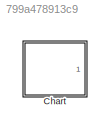
MODEL slx_799a478913c9
KIND model
CONFIG AbsTol = auto
CONFIG EnableMultiTasking = on
CONFIG FixedStep = 0.1
CONFIG MaxStep = auto
CONFIG MinStep = auto
CONFIG RelTol = 1e-3
CONFIG SampleTimeConstraint = Unconstrained
CONFIG SolverName = FixedStepDiscrete
CONFIG StartTime = 0.0
CONFIG StopTime = 10.0
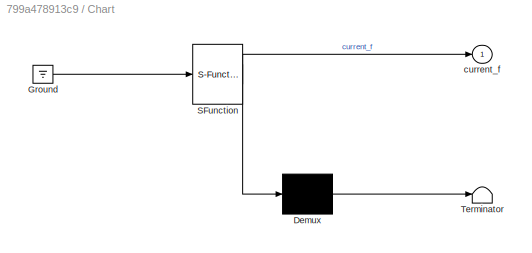
BLOCK [SubSystem] Chart
  ErrorFcn = Stateflow.Translate.translate
  PermitHierarchicalResolution = ExplicitOnly
  Ports = [0, 1]
  RequestExecContextInheritance = off
  SFBlockType = Chart
  TreatAsAtomicUnit = on
BLOCK [Demux] Chart/ Demux 
  Outputs = 1
  Ports = [1, 1]
BLOCK [Ground] Chart/ Ground 
BLOCK [S-Function] Chart/ SFunction 
  EnableBusSupport = off
  FunctionName = sf_sfun
  PortCounts = [1 2]
  Ports = [1, 2]
  SFcnIsStateOwnerBlock = off
  SFunctionDeploymentMode = off
  Tag = Stateflow S-Function 3
BLOCK [Terminator] Chart/ Terminator 
BLOCK [Outport] Chart/current_f
CHART Chart states=12 transitions=15
  STATE_LABEL 'Idle'
  STATE_LABEL 'request'
  STATE_LABEL 'working'
  STATE_LABEL 'LiftActive'
  STATE_LABEL 'Floor1\nentry:\ncurrent_f=1;'
  STATE_LABEL 'Foor2\nentry:\ncurrent_f=2;'
  STATE_LABEL 'Floor3\nentry:\ncurrent_f=3;'
  STATE_LABEL 'Floor4\nentry:\ncurrent_f=4;'
  STATE_LABEL 'Floor5\nentry:\ncurrent_f=5;'
  STATE_LABEL 'Delay '
  STATE_LABEL 'Dooropen'
  STATE_LABEL 'Doorclosed'
  STATE_LABEL 'LiftActive'
  STATE_LABEL 'Floor1\nentry:\ncurrent_f=1;'
  STATE_LABEL 'Foor2\nentry:\ncurrent_f=2;'
  STATE_LABEL 'Floor3\nentry:\ncurrent_f=3;'
  STATE_LABEL 'Floor4\nentry:\ncurrent_f=4;'
  STATE_LABEL 'Floor5\nentry:\ncurrent_f=5;'
  STATE_LABEL 'Floor1\nentry:\ncurrent_f=1;'
  STATE_LABEL 'Foor2\nentry:\ncurrent_f=2;'
  STATE_LABEL 'Floor3\nentry:\ncurrent_f=3;'
  STATE_LABEL 'Floor4\nentry:\ncurrent_f=4;'
  STATE_LABEL 'Floor5\nentry:\ncurrent_f=5;'
  STATE_LABEL 'Delay '
  STATE_LABEL 'Dooropen'
  STATE_LABEL 'Doorclosed'
  STATE_LABEL 'Dooropen'
  STATE_LABEL 'Doorclosed'
CHART  states=0 transitions=0
